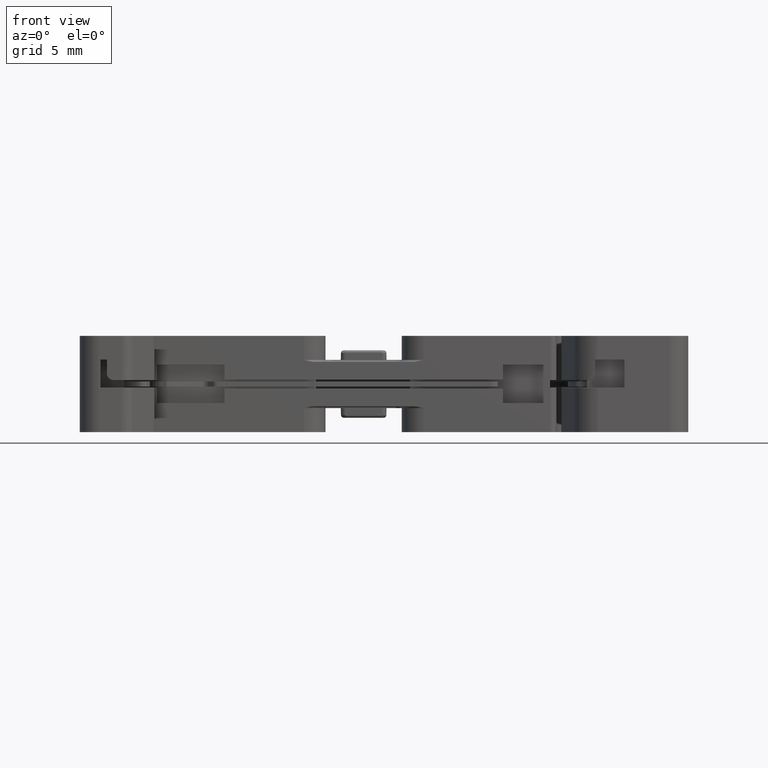
[diagram: clean part render]
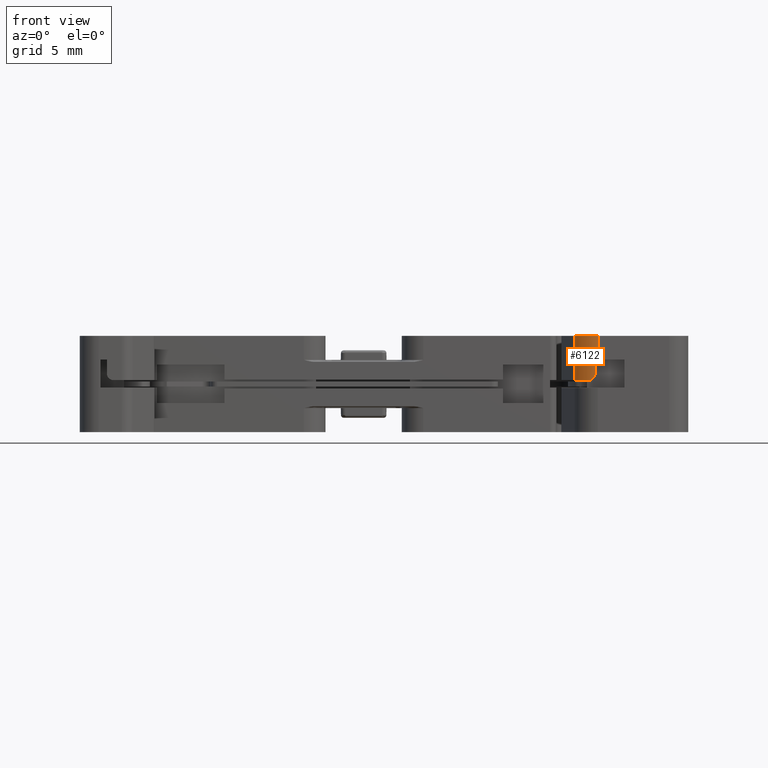
[diagram: same view with one face highlighted and labeled with its STEP entity id]
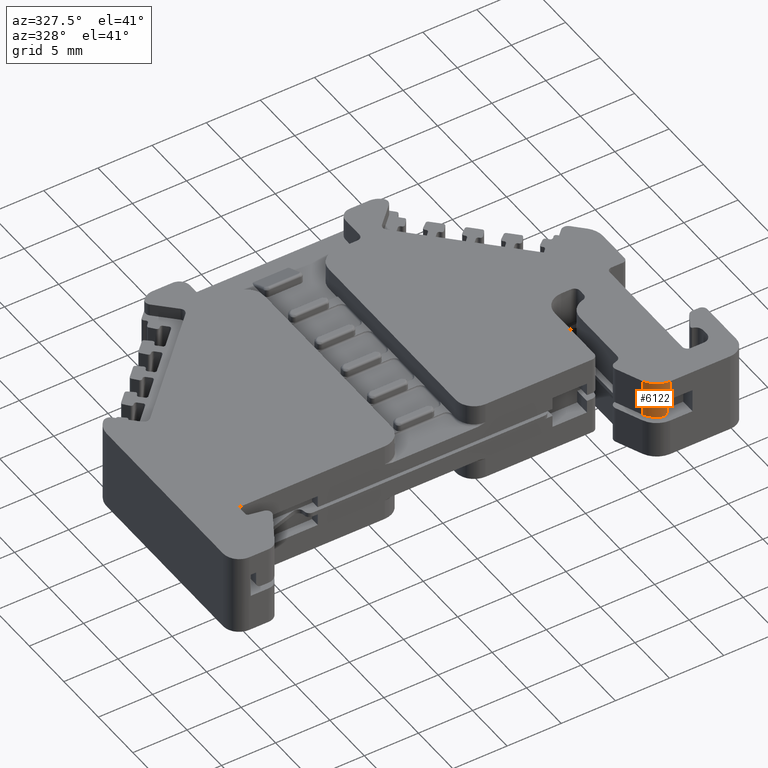
[diagram: same view with one face highlighted and labeled with its STEP entity id]
A machine part, front view. The second image highlights one B-rep face of the part: STEP entity #6122.
A second angle (auxiliary view) of the same face is appended — the face is thin or edge-on in the first view.
In plain terms, the highlighted cylindrical surface (edge-blend (fillet) strip) has radius 1.9804 mm, axis along (0, 0, 1).
Its self-contained STEP definition (entity closure, byte-faithful):
#264 = CARTESIAN_POINT ( 'NONE',  ( -241.8998097082663900, -28.28207146934254700, 5.046894167776010000 ) ) ;
#302 = CARTESIAN_POINT ( 'NONE',  ( -242.3675717852660200, -28.04317113737962700, 5.046894167776008200 ) ) ;
#307 = CARTESIAN_POINT ( 'NONE',  ( -243.0002330180594800, -27.21518279980074000, 5.046894167776008200 ) ) ;
#315 = CARTESIAN_POINT ( 'NONE',  ( -242.7472682801753800, -27.67563202022040200, 5.046894167776005500 ) ) ;
#319 = CARTESIAN_POINT ( 'NONE',  ( -242.8948726086215700, -27.46089242722067400, 5.046894167776008200 ) ) ;
#345 = CARTESIAN_POINT ( 'NONE',  ( -242.1476460454180100, -28.18476027222225600, 5.046894167776008200 ) ) ;
#1119 = VERTEX_POINT ( 'NONE', #4630 ) ;
#1189 = VERTEX_POINT ( 'NONE', #4725 ) ;
#1197 = B_SPLINE_CURVE_WITH_KNOTS ( 'NONE', 3,
 ( #17349, #17327, #17355, #17357, #17333, #17359 ),
 .UNSPECIFIED., .F., .F.,
 ( 4, 2, 4 ),
 ( 0.0000000000000000000, 0.0003941103824836215800, 0.0007882207649672431500 ),
 .UNSPECIFIED. ) ;
#1246 = B_SPLINE_CURVE_WITH_KNOTS ( 'NONE', 3,
 ( #264, #345, #302, #315, #319, #307 ),
 .UNSPECIFIED., .F., .F.,
 ( 4, 2, 4 ),
 ( 0.0000000000000000000, 0.5000000000000000000, 1.000000000000000000 ),
 .UNSPECIFIED. ) ;
#2132 = EDGE_CURVE ( 'NONE', #22098, #1119, #17587, .T. ) ;
#4630 = CARTESIAN_POINT ( 'NONE',  ( -241.1789237545942800, -28.41793963736255800, 6.631184955312008400 ) ) ;
#4725 = CARTESIAN_POINT ( 'NONE',  ( -241.1789237545942800, -28.41793963736255800, 8.498021178400511700 ) ) ;
#4933 = CARTESIAN_POINT ( 'NONE',  ( -241.1789237545942500, -26.43757615294285300, 6.631184955312008400 ) ) ;
#4956 = DIRECTION ( 'NONE',  ( 0.0000000000000000000, 0.0000000000000000000, 1.000000000000000000 ) ) ;
#4957 = DIRECTION ( 'NONE',  ( 1.000000000000000000, 0.0000000000000000000, 0.0000000000000000000 ) ) ;
#6122 = ADVANCED_FACE ( 'NONE', ( #12317 ), #12331, .T. ) ;
#6236 = EDGE_CURVE ( 'NONE', #22044, #1189, #24193, .T. ) ;
#6245 = EDGE_CURVE ( 'NONE', #1119, #1189, #13009, .T. ) ;
#6935 = EDGE_CURVE ( 'NONE', #22080, #22098, #17257, .T. ) ;
#6945 = EDGE_CURVE ( 'NONE', #22044, #10823, #17218, .T. ) ;
#6971 = EDGE_CURVE ( 'NONE', #10852, #22080, #1197, .T. ) ;
#7080 = EDGE_CURVE ( 'NONE', #10852, #10823, #1246, .T. ) ;
#7973 = CARTESIAN_POINT ( 'NONE',  ( -241.4047188371615100, -28.40502529106835500, 5.541985038881009000 ) ) ;
#7992 = CARTESIAN_POINT ( 'NONE',  ( -243.0002330180595900, -27.21518279980067600, 8.498021178400511700 ) ) ;
#8021 = CARTESIAN_POINT ( 'NONE',  ( -241.4047188371614800, -28.40502529106835200, 6.631184955312008400 ) ) ;
#10119 = CARTESIAN_POINT ( 'NONE',  ( -241.8998097082663900, -28.28207146934254700, 5.046894167776010000 ) ) ;
#10138 = CARTESIAN_POINT ( 'NONE',  ( -243.0002330180594800, -27.21518279980074000, 5.046894167776008200 ) ) ;
#10823 = VERTEX_POINT ( 'NONE', #10138 ) ;
#10852 = VERTEX_POINT ( 'NONE', #10119 ) ;
#12294 = CARTESIAN_POINT ( 'NONE',  ( -241.1789237545942500, -26.43757615294285300, -9.734692868469334600 ) ) ;
#12317 = FACE_OUTER_BOUND ( 'NONE', #20596, .T. ) ;
#12322 = DIRECTION ( 'NONE',  ( 0.0000000000000000000, 0.0000000000000000000, 1.000000000000000000 ) ) ;
#12327 = DIRECTION ( 'NONE',  ( 1.000000000000000000, 0.0000000000000000000, 0.0000000000000000000 ) ) ;
#12331 = CYLINDRICAL_SURFACE ( 'NONE', #24088, 1.980363484419545000 ) ;
#13001 = DIRECTION ( 'NONE',  ( 0.0000000000000000000, 0.0000000000000000000, 1.000000000000000000 ) ) ;
#13009 = LINE ( 'NONE', #13054, #24192 ) ;
#13019 = DIRECTION ( 'NONE',  ( 1.000000000000000000, 0.0000000000000000000, 0.0000000000000000000 ) ) ;
#13030 = CARTESIAN_POINT ( 'NONE',  ( -241.1789237545942500, -26.43757615294285300, 8.498021178400511700 ) ) ;
#13054 = CARTESIAN_POINT ( 'NONE',  ( -241.1789237545941900, -28.41793963736255800, -9.734692868469334600 ) ) ;
#13069 = DIRECTION ( 'NONE',  ( 0.0000000000000000000, 0.0000000000000000000, 1.000000000000000000 ) ) ;
#16274 = VECTOR ( 'NONE', #17266, 1000.000000000000000 ) ;
#16335 = VECTOR ( 'NONE', #17262, 1000.000000000000000 ) ;
#17218 = LINE ( 'NONE', #17289, #16274 ) ;
#17246 = CARTESIAN_POINT ( 'NONE',  ( -241.4047188371615100, -28.40502529106835200, -9.734692868469334600 ) ) ;
#17257 = LINE ( 'NONE', #17246, #16335 ) ;
#17262 = DIRECTION ( 'NONE',  ( 0.0000000000000000000, 0.0000000000000000000, 1.000000000000000000 ) ) ;
#17266 = DIRECTION ( 'NONE',  ( -0.0000000000000000000, -0.0000000000000000000, -1.000000000000000000 ) ) ;
#17289 = CARTESIAN_POINT ( 'NONE',  ( -243.0002330180595900, -27.21518279980075800, -9.734692868469334600 ) ) ;
#17327 = CARTESIAN_POINT ( 'NONE',  ( -241.7757941983040800, -28.33054057543053300, 5.046894167776028600 ) ) ;
#17333 = CARTESIAN_POINT ( 'NONE',  ( -241.4047188371615100, -28.40502529106835900, 5.408694115375715800 ) ) ;
#17349 = CARTESIAN_POINT ( 'NONE',  ( -241.8998097082663900, -28.28207146934254700, 5.046894167776010000 ) ) ;
#17355 = CARTESIAN_POINT ( 'NONE',  ( -241.6479844589081000, -28.36394306573306800, 5.096201656962704400 ) ) ;
#17357 = CARTESIAN_POINT ( 'NONE',  ( -241.4609895662475500, -28.40006088025172600, 5.278213048769326400 ) ) ;
#17359 = CARTESIAN_POINT ( 'NONE',  ( -241.4047188371615100, -28.40502529106835500, 5.541985038881009000 ) ) ;
#17584 = AXIS2_PLACEMENT_3D ( 'NONE', #4933, #4956, #4957 ) ;
#17587 = CIRCLE ( 'NONE', #17584, 1.980363484419545000 ) ;
#18158 = ORIENTED_EDGE ( 'NONE', *, *, #7080, .F. ) ;
#18219 = ORIENTED_EDGE ( 'NONE', *, *, #6935, .T. ) ;
#18223 = ORIENTED_EDGE ( 'NONE', *, *, #2132, .T. ) ;
#18246 = ORIENTED_EDGE ( 'NONE', *, *, #6245, .T. ) ;
#18247 = ORIENTED_EDGE ( 'NONE', *, *, #6236, .F. ) ;
#18251 = ORIENTED_EDGE ( 'NONE', *, *, #6945, .T. ) ;
#18255 = ORIENTED_EDGE ( 'NONE', *, *, #6971, .T. ) ;
#20596 = EDGE_LOOP ( 'NONE', ( #18223, #18246, #18247, #18251, #18158, #18255, #18219 ) ) ;
#22044 = VERTEX_POINT ( 'NONE', #7992 ) ;
#22080 = VERTEX_POINT ( 'NONE', #7973 ) ;
#22098 = VERTEX_POINT ( 'NONE', #8021 ) ;
#24088 = AXIS2_PLACEMENT_3D ( 'NONE', #12294, #12322, #12327 ) ;
#24192 = VECTOR ( 'NONE', #13069, 1000.000000000000000 ) ;
#24193 = CIRCLE ( 'NONE', #24218, 1.980363484419545000 ) ;
#24218 = AXIS2_PLACEMENT_3D ( 'NONE', #13030, #13001, #13019 ) ;